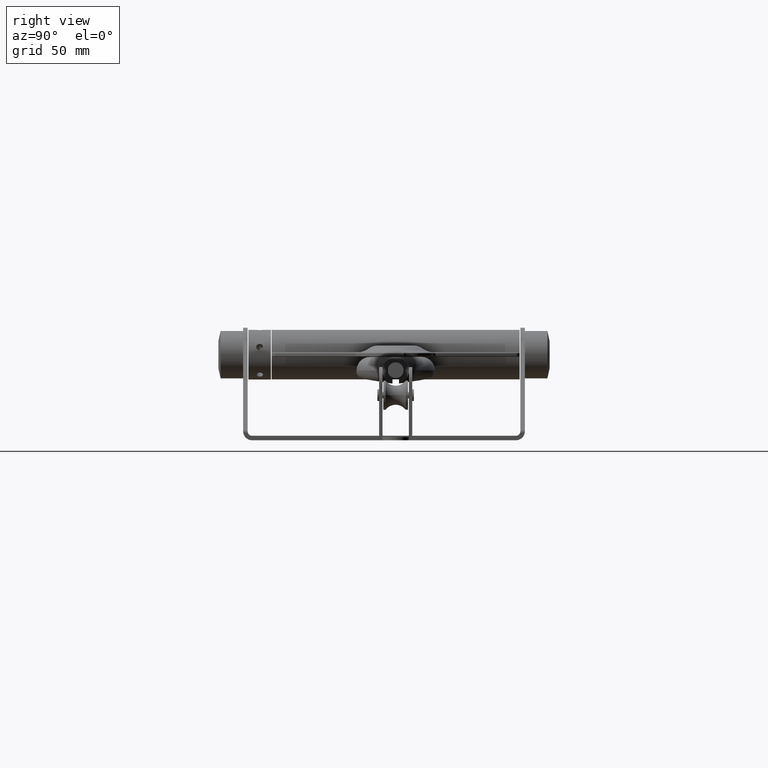
[diagram: clean part render]
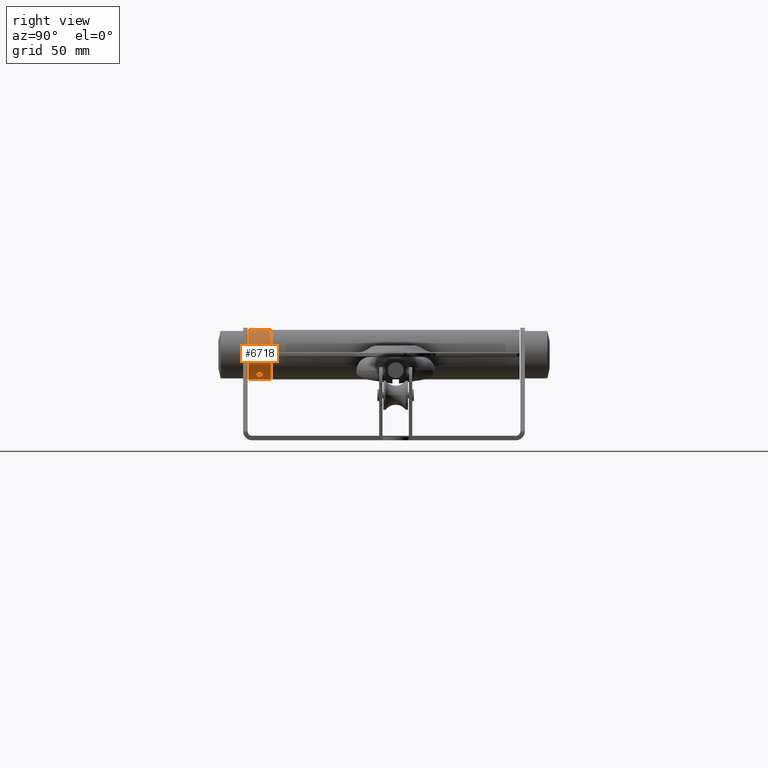
[diagram: same view with one face highlighted and labeled with its STEP entity id]
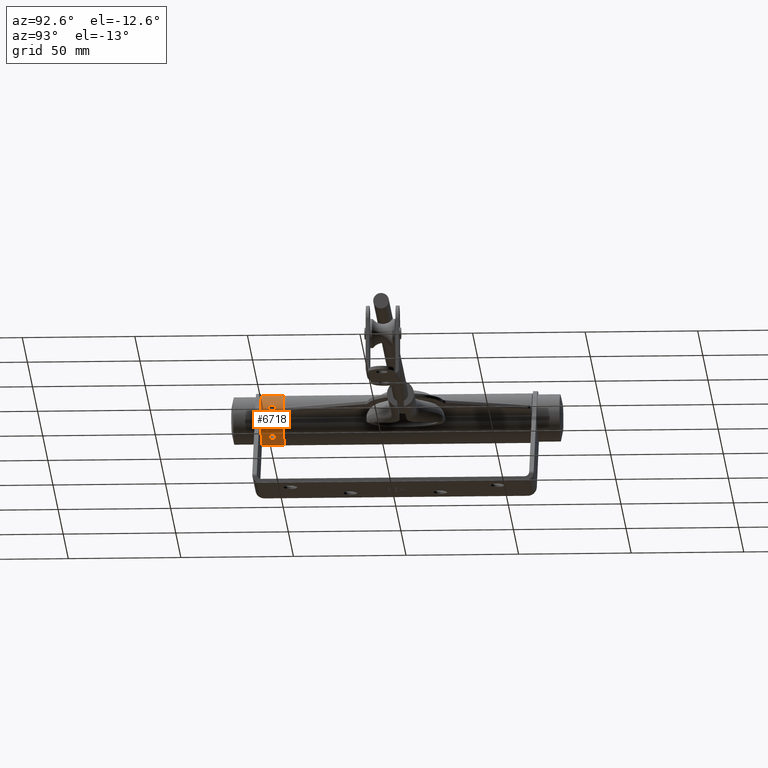
[diagram: same view with one face highlighted and labeled with its STEP entity id]
A machine part, right view. The second image highlights one B-rep face of the part: STEP entity #6718.
A second angle (auxiliary view) of the same face is appended — the face is thin or edge-on in the first view.
In plain terms, the highlighted cylindrical surface (bore or boss wall) has radius 11 mm, axis along (0, 1, 0).
Its self-contained STEP definition (entity closure, byte-faithful):
#156 = CARTESIAN_POINT ( 'NONE',  ( 5.191715796553792117, -0.09922106720705439753, -9.697736183657182707 ) ) ;
#167 = CARTESIAN_POINT ( 'NONE',  ( 10.43162004397093412, -1.500054600960704976, 3.491546571518214126 ) ) ;
#231 = CARTESIAN_POINT ( 'NONE',  ( 7.507420032056269399, -0.6654642516021292975, -8.039905768890871940 ) ) ;
#328 = CARTESIAN_POINT ( 'NONE',  ( 1.302460655520604860, -0.7504703599725630614, 10.92275567198693231 ) ) ;
#377 = CARTESIAN_POINT ( 'NONE',  ( 5.200397838848361154, -0.1967606968004345924, -9.693102352215765549 ) ) ;
#388 = CARTESIAN_POINT ( 'NONE',  ( 10.64816999410571086, 1.348456892399368057, 2.761293646733665064 ) ) ;
#511 = CARTESIAN_POINT ( 'NONE',  ( -5.234719932667456277, -0.3904336888679598161, -9.674610295123361681 ) ) ;
#861 = B_SPLINE_CURVE_WITH_KNOTS ( 'NONE', 3,
 ( #11095, #17929, #10622, #12430, #5628, #21396, #1586, #14232, #7053, #18338, #3790, #23211, #5702, #167, #12792, #14640, #20186, #2039, #3865, #16779, #18570, #13259, #22327, #15035, #15107, #13033, #5765, #16614, #7609, #11315, #14957, #7928, #7841, #14793, #9586, #6097, #22092, #2358, #12953, #9433, #5930, #388, #20576, #22248, #11384, #4273, #20332, #22169, #11240, #2203 ),
 .UNSPECIFIED., .T., .F.,
 ( 4, 2, 2, 2, 2, 2, 2, 2, 2, 2, 2, 2, 2, 2, 2, 2, 2, 2, 2, 2, 2, 2, 2, 2, 4 ),
 ( 0.000000000000000000, 0.0002934112971071087045, 0.0005868225942142170836, 0.0008802338913213254628, 0.001173645188428433734, 0.001760467782642649625, 0.002347290376856865299, 0.002640701673963972377, 0.002934112971071079455, 0.003520935565285295780, 0.003814346862392403725, 0.004107758159499512104, 0.004401169456606620484, 0.004694580753713728863, 0.005281403347927945621, 0.005868225942142162380, 0.006161637239249270759, 0.006455048536356379138, 0.007041871130570599366, 0.007335282427677707745, 0.007628693724784816124, 0.007922105021891926238, 0.008215516318999034617, 0.008802338913213251376, 0.009389161507427469869 ),
 .UNSPECIFIED. ) ;
#895 = EDGE_LOOP ( 'NONE', ( #8674 ) ) ;
#998 = EDGE_LOOP ( 'NONE', ( #19027 ) ) ;
#1009 = DIRECTION ( 'NONE',  ( -0.000000000000000000, 1.000000000000000000, -0.000000000000000000 ) ) ;
#1055 = CARTESIAN_POINT ( 'NONE',  ( -7.618766779678497691, -1.355252715606880543E-16, -7.934380426779859441 ) ) ;
#1101 = CARTESIAN_POINT ( 'NONE',  ( 1.734723475976807094E-15, 4.999999999999997335, 0.000000000000000000 ) ) ;
#1263 = CARTESIAN_POINT ( 'NONE',  ( -9.918137013876709318, 0.3955845421627410263, 4.757759455030100781 ) ) ;
#1346 = CARTESIAN_POINT ( 'NONE',  ( -10.79936843061965313, -0.6654642516021228582, 2.091669622598185896 ) ) ;
#1410 = VERTEX_POINT ( 'NONE', #10317 ) ;
#1435 = CARTESIAN_POINT ( 'NONE',  ( -10.39999180744122143, 1.490434260984158099, 3.584604037679150146 ) ) ;
#1508 = CARTESIAN_POINT ( 'NONE',  ( -10.67175748062234497, -1.310826343423887375, 2.673333922292947751 ) ) ;
#1581 = CARTESIAN_POINT ( 'NONE',  ( -10.82061332901179540, 0.3929074165688718479, 1.979898828246633880 ) ) ;
#1586 = CARTESIAN_POINT ( 'NONE',  ( 10.79050706957852412, -0.7516487550839683340, 2.137278101710006428 ) ) ;
#1674 = CARTESIAN_POINT ( 'NONE',  ( -0.9155106826520545971, 1.192215103256997422, 10.96213776218510461 ) ) ;
#1752 = CARTESIAN_POINT ( 'NONE',  ( -0.6654692299742590578, 1.347889999444485065, 10.98022825270610348 ) ) ;
#1832 = CARTESIAN_POINT ( 'NONE',  ( -0.09851459464985867776, 1.499962747906386840, 10.99999492016941005 ) ) ;
#1915 = CARTESIAN_POINT ( 'NONE',  ( 1.130516797368213533, -0.9906952745501896862, 10.94197156844076702 ) ) ;
#1954 = VERTEX_POINT ( 'NONE', #15612 ) ;
#2032 = CARTESIAN_POINT ( 'NONE',  ( 6.993379004750342354, 1.347265181280678625, -8.491226015405500149 ) ) ;
#2039 = CARTESIAN_POINT ( 'NONE',  ( 10.20497941564840261, -1.310826343423886042, 4.109929088377749729 ) ) ;
#2053 = CARTESIAN_POINT ( 'NONE',  ( 1.128859521965071444, 0.9925904746393366951, 10.94214375252337490 ) ) ;
#2138 = CARTESIAN_POINT ( 'NONE',  ( 0.1953226422279473740, 1.500074180597992912, 11.00001011553537289 ) ) ;
#2203 = CARTESIAN_POINT ( 'NONE',  ( 10.82742360187844533, -1.084202172485504434E-16, 1.940849851350075372 ) ) ;
#2233 = EDGE_LOOP ( 'NONE', ( #4261 ) ) ;
#2249 = CARTESIAN_POINT ( 'NONE',  ( -5.840246068389841838, -1.310826343423883822, -9.323338878639892968 ) ) ;
#2346 = CARTESIAN_POINT ( 'NONE',  ( 6.148529388612073987, 1.452431181521820269, -9.121666627276168171 ) ) ;
#2358 = CARTESIAN_POINT ( 'NONE',  ( 10.49187094668844367, 1.500086629875221123, 3.306127493897090819 ) ) ;
#2545 = CARTESIAN_POINT ( 'NONE',  ( -7.611676845475818354, -0.1967606968004345924, -7.941205607014395262 ) ) ;
#2678 = CARTESIAN_POINT ( 'NONE',  ( -9.921367618360731555, -0.3886218608046736467, 4.750456343781358726 ) ) ;
#2700 = CARTESIAN_POINT ( 'NONE',  ( -5.914562872713551300, 1.347265181280679514, -9.275031815228480525 ) ) ;
#3078 = CARTESIAN_POINT ( 'NONE',  ( -10.82567372722415300, -0.1980102255760644303, 1.950683338643560472 ) ) ;
#3158 = CARTESIAN_POINT ( 'NONE',  ( -10.71020245703200757, -1.200862300451582820, 2.512235011411056096 ) ) ;
#3237 = CARTESIAN_POINT ( 'NONE',  ( -9.982602904303039537, 0.7563316221577113252, 4.620969174638593024 ) ) ;
#3341 = CARTESIAN_POINT ( 'NONE',  ( -1.198964913299075841, -0.9223237274877774672, 10.93534439137421366 ) ) ;
#3391 = CARTESIAN_POINT ( 'NONE',  ( -10.20562548385357360, 1.302457116837337781, 4.105106537322852134 ) ) ;
#3488 = CARTESIAN_POINT ( 'NONE',  ( -1.460375320810246347, -0.3942881640580507274, 10.90288934863977843 ) ) ;
#3628 = CARTESIAN_POINT ( 'NONE',  ( 5.259951325779389286, -0.4839463892377863785, -9.660970630368273859 ) ) ;
#3781 = CARTESIAN_POINT ( 'NONE',  ( 5.191715796553792117, -1.219727444046192488E-16, -9.697736183657184483 ) ) ;
#3790 = CARTESIAN_POINT ( 'NONE',  ( 10.67171365346788292, -1.310680290924018720, 2.673420108965852027 ) ) ;
#3854 = CARTESIAN_POINT ( 'NONE',  ( 6.143368989296050131, -1.460375467965762342, -9.126426729119744508 ) ) ;
#3865 = CARTESIAN_POINT ( 'NONE',  ( 10.14139049093541622, -1.200862300451586373, 4.262858235214821434 ) ) ;
#3881 = CARTESIAN_POINT ( 'NONE',  ( 1.802486111757151122E-15, -1.499999999999994671, 11.00000000000000355 ) ) ;
#4060 = CARTESIAN_POINT ( 'NONE',  ( -7.473443048979287795, -0.7516487550839699994, -8.071595226244703269 ) ) ;
#4087 = CARTESIAN_POINT ( 'NONE',  ( 5.191715796553792117, -1.219727444046192488E-16, -9.697736183657184483 ) ) ;
#4151 = CARTESIAN_POINT ( 'NONE',  ( -7.345490451056918779, -0.9916825642055963064, -8.188320375931157358 ) ) ;
#4261 = ORIENTED_EDGE ( 'NONE', *, *, #22550, .T. ) ;
#4273 = CARTESIAN_POINT ( 'NONE',  ( 10.77045862837951518, 0.9234156699492931386, 2.239759008106761762 ) ) ;
#4317 = CARTESIAN_POINT ( 'NONE',  ( -7.562714722497001496, -0.4839463892377865450, -7.987915090718844091 ) ) ;
#4693 = CARTESIAN_POINT ( 'NONE',  ( -6.775220413848130008, 1.452431181521819603, -8.666348945522887703 ) ) ;
#4783 = CARTESIAN_POINT ( 'NONE',  ( -7.240986333037261247, 1.130510068122147604, -8.280878081144242842 ) ) ;
#4999 = CARTESIAN_POINT ( 'NONE',  ( -10.11317089266316671, 1.130510068122144940, 4.327655181018683628 ) ) ;
#5083 = CARTESIAN_POINT ( 'NONE',  ( -10.60104970929285884, -1.423632055747013236, 2.937009628419212426 ) ) ;
#5097 = VERTEX_POINT ( 'NONE', #13932 ) ;
#5156 = CARTESIAN_POINT ( 'NONE',  ( -10.64877988868550318, 1.347265181280680402, 2.758941106857715653 ) ) ;
#5178 = CARTESIAN_POINT ( 'NONE',  ( -0.9911400898390937408, 1.130231421369405131, 10.95548148214987272 ) ) ;
#5321 = CARTESIAN_POINT ( 'NONE',  ( -1.423632848345541824, 0.4826397892659986533, 10.90755271237982349 ) ) ;
#5483 = CARTESIAN_POINT ( 'NONE',  ( -0.4839486361568829942, -1.423185392575385899, 10.98972522702108101 ) ) ;
#5518 = FACE_OUTER_BOUND ( 'NONE', #10934, .T. ) ;
#5565 = CARTESIAN_POINT ( 'NONE',  ( 1.490434331210564567, -0.1953860087754974995, 10.89857665632106887 ) ) ;
#5628 = CARTESIAN_POINT ( 'NONE',  ( 10.81354342099870891, -0.4839463892377851018, 2.017106876836803675 ) ) ;
#5689 = CARTESIAN_POINT ( 'NONE',  ( 6.623921259609097945, -1.490291314580465931, -8.782535756916491465 ) ) ;
#5702 = CARTESIAN_POINT ( 'NONE',  ( 10.52240335422114725, -1.499890092889741400, 3.212071677671953118 ) ) ;
#5765 = CARTESIAN_POINT ( 'NONE',  ( 9.900389022253918370, -0.09851510423734066713, 4.793985524534121190 ) ) ;
#5779 = CARTESIAN_POINT ( 'NONE',  ( 1.460549597430521596, 0.3943136771651463146, 10.90287073325300327 ) ) ;
#5930 = CARTESIAN_POINT ( 'NONE',  ( 10.60107048254503326, 1.423599352457328049, 2.936932319781555556 ) ) ;
#5980 = CARTESIAN_POINT ( 'NONE',  ( -5.517167974941250996, -0.9911323540295565726, -9.516606427297297444 ) ) ;
#6065 = CARTESIAN_POINT ( 'NONE',  ( -7.583823662643655261, -0.3886218608046749234, -7.967809582737003460 ) ) ;
#6090 = CYLINDRICAL_SURFACE ( 'NONE', #16833, 11.00000000000000000 ) ;
#6097 = CARTESIAN_POINT ( 'NONE',  ( 10.33447876204744098, 1.460549766408085981, 3.772482645674902990 ) ) ;
#6297 = CARTESIAN_POINT ( 'NONE',  ( -5.226749090433791878, 0.3929074165688670184, -9.679192431795620166 ) ) ;
#6379 = EDGE_LOOP ( 'NONE', ( #10032 ) ) ;
#6428 = CARTESIAN_POINT ( 'NONE',  ( -10.14060134787140299, -1.198958018750907017, 4.264678942825545604 ) ) ;
#6540 = CARTESIAN_POINT ( 'NONE',  ( -7.396986753916988455, 0.9234156699492940268, -8.142719843050402417 ) ) ;
#6664 = CARTESIAN_POINT ( 'NONE',  ( -10.14344625212994444, 1.193704798455211602, 4.256429175917683772 ) ) ;
#6718 = ADVANCED_FACE ( 'NONE', ( #17231, #9564, #11238, #22866, #13134, #5518, #17446 ), #6090, .T. ) ;
#6830 = CARTESIAN_POINT ( 'NONE',  ( -9.900372618753632281, 1.897353801849632760E-16, 4.794019400235381312 ) ) ;
#6971 = CARTESIAN_POINT ( 'NONE',  ( -10.76854019030190024, -0.9155028073419344548, 2.245335404296280313 ) ) ;
#6998 = CARTESIAN_POINT ( 'NONE',  ( -0.9916901964606196218, -1.129645977572705906, 10.95542646406630993 ) ) ;
#7053 = CARTESIAN_POINT ( 'NONE',  ( 10.75560056494222927, -0.9916825642055926426, 2.306919381528580448 ) ) ;
#7281 = CARTESIAN_POINT ( 'NONE',  ( 7.188081110935033990, -1.200862300451581932, -8.327739871405276162 ) ) ;
#7309 = CARTESIAN_POINT ( 'NONE',  ( 0.3929095347849420050, 1.460757429368037430, 10.99446764604949323 ) ) ;
#7364 = CARTESIAN_POINT ( 'NONE',  ( 5.840314493451181477, -1.310680290924018276, -9.323270563392430432 ) ) ;
#7439 = CARTESIAN_POINT ( 'NONE',  ( 7.480571517709965867, 0.7540569334361714171, -8.065154800405652580 ) ) ;
#7609 = CARTESIAN_POINT ( 'NONE',  ( 9.917815405005093510, 0.3929074165688645204, 4.758425136358007457 ) ) ;
#7841 = CARTESIAN_POINT ( 'NONE',  ( 10.14269542414140801, 1.192215286157108700, 4.258214301208017361 ) ) ;
#7918 = CARTESIAN_POINT ( 'NONE',  ( 6.069099558319106080, 1.423599352457329159, -9.174655163987134543 ) ) ;
#7928 = CARTESIAN_POINT ( 'NONE',  ( 10.11242164522266229, 1.128852651718869948, 4.329404587279015004 ) ) ;
#7971 = CARTESIAN_POINT ( 'NONE',  ( -5.463102790937089281, -0.9155028073419336776, -9.547643520973597475 ) ) ;
#8012 = DIRECTION ( 'NONE',  ( 0.000000000000000000, 0.000000000000000000, 1.000000000000000000 ) ) ;
#8190 = CARTESIAN_POINT ( 'NONE',  ( -9.900372618753632281, 1.897353801849632760E-16, 4.794019400235381312 ) ) ;
#8290 = CARTESIAN_POINT ( 'NONE',  ( 1.734723475976807094E-15, -4.999999999999997335, 11.00000000000000000 ) ) ;
#8309 = CARTESIAN_POINT ( 'NONE',  ( -5.456912513162738065, 0.9212460349021189820, -9.552034771092985821 ) ) ;
#8536 = CARTESIAN_POINT ( 'NONE',  ( 1.734723475976807094E-15, -1.499999999999994449, 11.00000000000000355 ) ) ;
#8674 = ORIENTED_EDGE ( 'NONE', *, *, #19964, .T. ) ;
#8719 = AXIS2_PLACEMENT_3D ( 'NONE', #1101, #1009, #8012 ) ;
#8757 = CARTESIAN_POINT ( 'NONE',  ( -10.72588113288015776, 1.128852651718871281, 2.441370421391579004 ) ) ;
#8992 = CARTESIAN_POINT ( 'NONE',  ( -1.310829227117657148, 0.7552571413888262697, 10.92188048727257943 ) ) ;
#9130 = CARTESIAN_POINT ( 'NONE',  ( 7.392156981468405164, -0.9155028073419364532, -8.146103612725637433 ) ) ;
#9207 = CARTESIAN_POINT ( 'NONE',  ( 7.472763403791653936, -0.7531955497149609435, -8.072223734441827503 ) ) ;
#9233 = CARTESIAN_POINT ( 'NONE',  ( 1.301112446651470966, 0.7527893807653758262, 10.92291670360245348 ) ) ;
#9356 = CARTESIAN_POINT ( 'NONE',  ( 6.850098427605757934, -1.423632055747011904, -8.607231379975704755 ) ) ;
#9433 = CARTESIAN_POINT ( 'NONE',  ( 10.57522055683797291, 1.452431181521819381, 3.028848935820647625 ) ) ;
#9480 = ORIENTED_EDGE ( 'NONE', *, *, #22819, .T. ) ;
#9496 = CARTESIAN_POINT ( 'NONE',  ( 5.843603372935849194, 1.302457116837340445, -9.319817102243215245 ) ) ;
#9564 = FACE_BOUND ( 'NONE', #998, .T. ) ;
#9586 = CARTESIAN_POINT ( 'NONE',  ( 10.23670879385913324, 1.347265181280678403, 4.027165531550585875 ) ) ;
#9648 = CARTESIAN_POINT ( 'NONE',  ( 5.359957865527233523, 0.7563316221577118803, -9.606069359406705033 ) ) ;
#9698 = CARTESIAN_POINT ( 'NONE',  ( -5.191649720360737241, 0.1953220818559212313, -9.697771557770991535 ) ) ;
#9779 = CARTESIAN_POINT ( 'NONE',  ( -6.781342190811100679, -1.460375467965763230, -8.662912066491324836 ) ) ;
#9865 = CARTESIAN_POINT ( 'NONE',  ( -7.589771022498330133, 0.3955845421627401937, -7.962480309803227740 ) ) ;
#9921 = CARTESIAN_POINT ( 'NONE',  ( -9.985964145444786055, -0.7516487550839664467, 4.613406614267189454 ) ) ;
#10032 = ORIENTED_EDGE ( 'NONE', *, *, #10906, .T. ) ;
#10034 = AXIS2_PLACEMENT_3D ( 'NONE', #17914, #19939, #14297 ) ;
#10105 = CARTESIAN_POINT ( 'NONE',  ( -6.304093887365737281, 1.499825000284431775, -9.016525945770228034 ) ) ;
#10155 = CARTESIAN_POINT ( 'NONE',  ( -9.900372618753634057, -0.09922106720705460570, 4.794019400235382200 ) ) ;
#10300 = CARTESIAN_POINT ( 'NONE',  ( -10.81871858378077356, -0.3904336888679587614, 1.988895507795592099 ) ) ;
#10317 = CARTESIAN_POINT ( 'NONE',  ( 1.734723475976807094E-15, 4.999999999999997335, 11.00000000000000000 ) ) ;
#10384 = CARTESIAN_POINT ( 'NONE',  ( -10.57817861016031635, 1.460549766408085759, 3.022451635125785074 ) ) ;
#10622 = CARTESIAN_POINT ( 'NONE',  ( 10.82569946490557733, -0.1967606968004337875, 1.950538896913549536 ) ) ;
#10733 = CARTESIAN_POINT ( 'NONE',  ( -0.9146204051370453447, -1.192925387821238026, 10.96221452372085459 ) ) ;
#10806 = CARTESIAN_POINT ( 'NONE',  ( -0.7532021306663971849, 1.300854800830486324, 10.97448452901247862 ) ) ;
#10876 = CARTESIAN_POINT ( 'NONE',  ( -0.3904348020054948520, 1.451615636338489113, 10.99349008195833832 ) ) ;
#10906 = EDGE_CURVE ( 'NONE', #1954, #1954, #15396, .T. ) ;
#10919 = B_SPLINE_CURVE_WITH_KNOTS ( 'NONE', 3,
 ( #3781, #156, #377, #18172, #3628, #20321, #22162, #14475, #21997, #20027, #7364, #3854, #12942, #10928, #5689, #12718, #9356, #16302, #7281, #20101, #9130, #9207, #231, #21932, #14785, #14631, #16454, #18327, #22082, #7439, #11155, #11085, #12866, #20182, #2032, #14704, #16521, #18412, #20246, #2346, #7918, #17011, #9496, #20643, #20409, #22531, #9648, #16691, #14858, #4087 ),
 .UNSPECIFIED., .T., .F.,
 ( 4, 2, 2, 2, 2, 2, 2, 2, 2, 2, 2, 2, 2, 2, 2, 2, 2, 2, 2, 2, 2, 2, 2, 2, 4 ),
 ( 0.000000000000000000, 0.0002934112971071089213, 0.0005868225942142178426, 0.0008802338913213267639, 0.001173645188428435685, 0.001760467782642654395, 0.002347290376856872671, 0.002640701673963980617, 0.002934112971071088562, 0.003520935565285307923, 0.003814346862392416736, 0.004107758159499525982, 0.004401169456606635229, 0.004694580753713744475, 0.005281403347927962968, 0.005868225942142182329, 0.006161637239249289841, 0.006455048536356398220, 0.007041871130570617580, 0.007335282427677723358, 0.007628693724784830002, 0.007922105021891936646, 0.008215516318999043291, 0.008802338913213258315, 0.009389161507427471604 ),
 .UNSPECIFIED. ) ;
#10928 = CARTESIAN_POINT ( 'NONE',  ( 6.544205991239731901, -1.500054600960704088, -8.842112991082993645 ) ) ;
#10934 = EDGE_LOOP ( 'NONE', ( #15728 ) ) ;
#10954 = CARTESIAN_POINT ( 'NONE',  ( 0.7563379066569094755, -1.310005723733510985, 10.97545342880767016 ) ) ;
#11085 = CARTESIAN_POINT ( 'NONE',  ( 7.242418587068684133, 1.128852651718869282, -8.279624908219117785 ) ) ;
#11095 = CARTESIAN_POINT ( 'NONE',  ( 10.82742360187844533, -1.084202172485504434E-16, 1.940849851350075372 ) ) ;
#11155 = CARTESIAN_POINT ( 'NONE',  ( 7.398246209541301077, 0.9212460349021196482, -8.141573279624104487 ) ) ;
#11238 = FACE_BOUND ( 'NONE', #6379, .T. ) ;
#11240 = CARTESIAN_POINT ( 'NONE',  ( 10.82742360187845243, 0.1984421344141092114, 1.940849851350075594 ) ) ;
#11256 = CARTESIAN_POINT ( 'NONE',  ( 1.423600298622414773, -0.4827192565959946280, 10.90755685295867039 ) ) ;
#11288 = CARTESIAN_POINT ( 'NONE',  ( -7.507394322397938247, -0.6655396847754703193, -8.039929847855258771 ) ) ;
#11315 = CARTESIAN_POINT ( 'NONE',  ( 9.982041754464503924, 0.7540569334361674203, 4.622176391939986750 ) ) ;
#11384 = CARTESIAN_POINT ( 'NONE',  ( 10.72545901159244153, 1.130510068122144496, 2.443226117382102824 ) ) ;
#11425 = CARTESIAN_POINT ( 'NONE',  ( -5.191748978901890688, -0.09851510423733833566, -9.697718419374716348 ) ) ;
#11583 = CARTESIAN_POINT ( 'NONE',  ( -6.069166663914760562, -1.423632055747012126, -9.174611517767445434 ) ) ;
#11813 = CARTESIAN_POINT ( 'NONE',  ( -7.479596790665397954, 0.7563316221577112142, -8.066061536278244404 ) ) ;
#11887 = CARTESIAN_POINT ( 'NONE',  ( -6.850160674396876814, 1.423599352457328493, -8.607181046185294448 ) ) ;
#11966 = CARTESIAN_POINT ( 'NONE',  ( -5.702697399548497970, 1.192215286157109588, -9.406694524172358740 ) ) ;
#12014 = CARTESIAN_POINT ( 'NONE',  ( -9.966340101453594613, -0.6655396847754667666, 4.655481334144163874 ) ) ;
#12098 = CARTESIAN_POINT ( 'NONE',  ( -10.02998138122564953, 0.9234156699492941378, 4.518713641325036612 ) ) ;
#12176 = CARTESIAN_POINT ( 'NONE',  ( -10.33446895256094500, -1.460375467965762120, 3.772452630476565982 ) ) ;
#12427 = CARTESIAN_POINT ( 'NONE',  ( -10.75572922077548377, -0.9911323540295576828, 2.306345439250122809 ) ) ;
#12430 = CARTESIAN_POINT ( 'NONE',  ( 10.81880319122902279, -0.3886218608046739798, 1.988433655489234786 ) ) ;
#12512 = CARTESIAN_POINT ( 'NONE',  ( -1.490291506661348908, 0.1966183384481407503, 10.89859646344575239 ) ) ;
#12537 = CIRCLE ( 'NONE', #8719, 11.00000000000000000 ) ;
#12656 = CARTESIAN_POINT ( 'NONE',  ( -0.1980093425005734764, 1.490107241295724805, 10.99863881655433850 ) ) ;
#12718 = CARTESIAN_POINT ( 'NONE',  ( 6.776615128851768866, -1.451978390107856676, -8.665261367693149808 ) ) ;
#12738 = CARTESIAN_POINT ( 'NONE',  ( 1.192220905689032051, 0.9155297715872047215, 10.93533777369070847 ) ) ;
#12792 = CARTESIAN_POINT ( 'NONE',  ( 10.39959209983132915, -1.490291314580466597, 3.585770674784422241 ) ) ;
#12817 = DIRECTION ( 'NONE',  ( 0.000000000000000000, 0.000000000000000000, 1.000000000000000000 ) ) ;
#12866 = CARTESIAN_POINT ( 'NONE',  ( 7.184067713773785613, 1.192215286157107590, -8.330415991163020450 ) ) ;
#12942 = CARTESIAN_POINT ( 'NONE',  ( 6.306463157979280254, -1.499890092889740734, -9.014815541566941093 ) ) ;
#12953 = CARTESIAN_POINT ( 'NONE',  ( 10.52074750223600219, 1.490434260984158987, 3.212956223789097621 ) ) ;
#13033 = CARTESIAN_POINT ( 'NONE',  ( 9.904736919230009207, -0.1980102255760679275, 4.785035391385826564 ) ) ;
#13134 = FACE_BOUND ( 'NONE', #2233, .T. ) ;
#13146 = CARTESIAN_POINT ( 'NONE',  ( -5.200527257715965135, -0.1980102255760640972, -9.693033239276866553 ) ) ;
#13259 = CARTESIAN_POINT ( 'NONE',  ( 9.986351870348084248, -0.7531955497149624978, 4.612566013568705436 ) ) ;
#13454 = CARTESIAN_POINT ( 'NONE',  ( -5.358794301245392688, 0.7540569334361679754, -9.606716183120008523 ) ) ;
#13590 = CARTESIAN_POINT ( 'NONE',  ( -9.933966071501725281, -0.4839463892377839915, 4.724167605055870744 ) ) ;
#13694 = CARTESIAN_POINT ( 'NONE',  ( -7.057900035143512163, 1.302457116837339335, -8.437578935534386204 ) ) ;
#13783 = CARTESIAN_POINT ( 'NONE',  ( -6.622935238232209976, 1.490434260984158543, -8.783276412135295530 ) ) ;
#13932 = CARTESIAN_POINT ( 'NONE',  ( 10.82742360187844355, 0.000000000000000000, 1.940849851350075150 ) ) ;
#13999 = CARTESIAN_POINT ( 'NONE',  ( -10.20499461799090035, -1.310680290924016500, 4.109833600939638565 ) ) ;
#14160 = CARTESIAN_POINT ( 'NONE',  ( -10.82743682599330626, 0.1953220818559250893, 1.940776077953774159 ) ) ;
#14185 = CARTESIAN_POINT ( 'NONE',  ( -0.6655446615906072116, -1.347855054338672254, 10.98022391171008216 ) ) ;
#14229 = CARTESIAN_POINT ( 'NONE',  ( -10.33584588564230700, 1.452431181521818493, 3.765568420576262731 ) ) ;
#14232 = CARTESIAN_POINT ( 'NONE',  ( 10.76868639095038560, -0.9146133221466113961, 2.244636700233039850 ) ) ;
#14297 = DIRECTION ( 'NONE',  ( 0.000000000000000000, 0.000000000000000000, 1.000000000000000000 ) ) ;
#14475 = CARTESIAN_POINT ( 'NONE',  ( 5.462483462369747578, -0.9146133221466128393, -9.547998477482607882 ) ) ;
#14564 = EDGE_CURVE ( 'NONE', #19618, #19618, #18060, .T. ) ;
#14579 = CARTESIAN_POINT ( 'NONE',  ( 1.499824784090836083, 0.1996650407121646209, 10.89727147721399803 ) ) ;
#14631 = CARTESIAN_POINT ( 'NONE',  ( 7.611571122535434775, -0.1980102255760667063, -7.941307334599110312 ) ) ;
#14640 = CARTESIAN_POINT ( 'NONE',  ( 10.33524252829879053, -1.451978390107857786, 3.767230953400937832 ) ) ;
#14704 = CARTESIAN_POINT ( 'NONE',  ( 6.781373768259104651, 1.460549766408084427, -8.662912120660998028 ) ) ;
#14730 = CARTESIAN_POINT ( 'NONE',  ( 1.348459399905603595, -0.6643138849464458318, 10.91710087695308040 ) ) ;
#14771 = EDGE_LOOP ( 'NONE', ( #9480 ) ) ;
#14785 = CARTESIAN_POINT ( 'NONE',  ( 7.583483743805753186, -0.3904336888679620921, -7.968133498091432898 ) ) ;
#14793 = CARTESIAN_POINT ( 'NONE',  ( 10.20475644132816129, 1.301108913038394821, 4.107262528142425317 ) ) ;
#14809 = CARTESIAN_POINT ( 'NONE',  ( 1.452431637780416063, -0.3873145048288275105, 10.90370624911236597 ) ) ;
#14817 = CARTESIAN_POINT ( 'NONE',  ( 1.734723475976807094E-15, 4.999999999999997335, 0.000000000000000000 ) ) ;
#14858 = CARTESIAN_POINT ( 'NONE',  ( 5.191715796553791229, 0.1984421344141073795, -9.697736183657189812 ) ) ;
#14891 = CARTESIAN_POINT ( 'NONE',  ( 0.7540624146361503133, 1.311327588671851840, 10.97561326748474109 ) ) ;
#14920 = CARTESIAN_POINT ( 'NONE',  ( -6.305783622589920867, -1.490291314580465709, -9.013676279970050942 ) ) ;
#14957 = CARTESIAN_POINT ( 'NONE',  ( 10.02928012779930000, 0.9212460349021179828, 4.520265762387386310 ) ) ;
#15005 = CARTESIAN_POINT ( 'NONE',  ( -7.062200791526457522, -1.310680290924018943, -8.435518203453703734 ) ) ;
#15035 = CARTESIAN_POINT ( 'NONE',  ( 9.933964020614926227, -0.4839264239596263173, 4.724171794875021924 ) ) ;
#15107 = CARTESIAN_POINT ( 'NONE',  ( 9.921570639471669395, -0.3904336888679624251, 4.750032966406307899 ) ) ;
#15234 = CARTESIAN_POINT ( 'NONE',  ( -5.698912050486497627, -1.200862300451579268, -9.409684525210915140 ) ) ;
#15274 = VERTEX_POINT ( 'NONE', #8536 ) ;
#15382 = CARTESIAN_POINT ( 'NONE',  ( -6.143359282846398095, 1.460549766408085537, -9.126456777796777331 ) ) ;
#15396 = B_SPLINE_CURVE_WITH_KNOTS ( 'NONE', 3,
 ( #22368, #22293, #2545, #6065, #4317, #11288, #4060, #18623, #4151, #16828, #15005, #9779, #20616, #16988, #14920, #18707, #11583, #2249, #15234, #5980, #7971, #22508, #16745, #20468, #511, #13146, #11425, #9698, #6297, #13454, #8309, #22897, #11966, #18943, #2700, #15382, #10105, #15553, #13783, #4693, #11887, #17311, #13694, #19029, #4783, #6540, #11813, #9865, #19111, #1055 ),
 .UNSPECIFIED., .T., .F.,
 ( 4, 2, 2, 2, 2, 2, 2, 2, 2, 2, 2, 2, 2, 2, 2, 2, 2, 2, 2, 2, 2, 2, 2, 2, 4 ),
 ( 0.000000000000000000, 0.0002934112971071071324, 0.0005868225942142143731, 0.0008802338913213215597, 0.001173645188428428529, 0.001760467782642646589, 0.002347290376856864431, 0.002640701673963974545, 0.002934112971071085093, 0.003520935565285300117, 0.003814346862392408062, 0.004107758159499515574, 0.004401169456606623086, 0.004694580753713730598, 0.005281403347927946489, 0.005868225942142161512, 0.006161637239249269024, 0.006455048536356378271, 0.007041871130570596764, 0.007335282427677706010, 0.007628693724784816992, 0.007922105021891926238, 0.008215516318999038087, 0.008802338913213258315, 0.009389161507427478542 ),
 .UNSPECIFIED. ) ;
#15444 = CARTESIAN_POINT ( 'NONE',  ( 5.191715796553791229, 0.000000000000000000, -9.697736183657184483 ) ) ;
#15553 = CARTESIAN_POINT ( 'NONE',  ( -6.544808915548391504, 1.500086629875221123, -8.841680339552299372 ) ) ;
#15612 = CARTESIAN_POINT ( 'NONE',  ( -7.618766779678497691, 0.000000000000000000, -7.934380426779859441 ) ) ;
#15728 = ORIENTED_EDGE ( 'NONE', *, *, #17815, .F. ) ;
#15763 = CARTESIAN_POINT ( 'NONE',  ( -10.79248853459883506, 0.7540569334361730824, 2.127877678963881802 ) ) ;
#15851 = CARTESIAN_POINT ( 'NONE',  ( -10.77080361631044347, 0.9212460349021233119, 2.238091129367870469 ) ) ;
#15887 = VERTEX_POINT ( 'NONE', #15444 ) ;
#16008 = CARTESIAN_POINT ( 'NONE',  ( -10.52110986407207172, -1.490291314580465709, 3.211777452306329828 ) ) ;
#16039 = CARTESIAN_POINT ( 'NONE',  ( -1.500054661872485262, 0.09710879590426363395, 10.89723983467673385 ) ) ;
#16181 = CARTESIAN_POINT ( 'NONE',  ( -1.451978861620272676, 0.3890821651643225909, 10.90376682771908534 ) ) ;
#16302 = CARTESIAN_POINT ( 'NONE',  ( 7.062286907694512728, -1.310826343423885820, -8.435474237925685514 ) ) ;
#16454 = CARTESIAN_POINT ( 'NONE',  ( 7.618739630932421569, -0.09851510423734213817, -7.934406495603068876 ) ) ;
#16521 = CARTESIAN_POINT ( 'NONE',  ( 6.627153609737886697, 1.499825000284431775, -8.781809318381252893 ) ) ;
#16551 = CARTESIAN_POINT ( 'NONE',  ( 0.9234245866482349019, -1.198110369442060508, 10.96204940545172413 ) ) ;
#16614 = CARTESIAN_POINT ( 'NONE',  ( 9.900339954372945783, 0.1953220818559188998, 4.794086857106414357 ) ) ;
#16643 = DIRECTION ( 'NONE',  ( -0.000000000000000000, 1.000000000000000000, -0.000000000000000000 ) ) ;
#16691 = CARTESIAN_POINT ( 'NONE',  ( 5.227400555143736582, 0.3955845421627425806, -9.678842921240249808 ) ) ;
#16745 = CARTESIAN_POINT ( 'NONE',  ( -5.326484398086387628, -0.6654642516021278542, -9.624448257812325380 ) ) ;
#16779 = CARTESIAN_POINT ( 'NONE',  ( 10.05720356238577473, -0.9911323540295613466, 4.456186358370620937 ) ) ;
#16785 = B_SPLINE_CURVE_WITH_KNOTS ( 'NONE', 3,
 ( #8190, #10155, #22949, #2678, #13590, #12014, #9921, #17282, #20909, #6428, #13999, #12176, #21313, #19482, #16008, #17692, #5083, #1508, #3158, #12427, #6971, #19643, #1346, #23036, #10300, #3078, #17770, #14160, #1581, #15763, #15851, #8757, #17530, #23355, #5156, #10384, #21468, #17612, #1435, #14229, #19717, #21231, #3391, #6664, #4999, #12098, #3237, #1263, #17857, #6830 ),
 .UNSPECIFIED., .T., .F.,
 ( 4, 2, 2, 2, 2, 2, 2, 2, 2, 2, 2, 2, 2, 2, 2, 2, 2, 2, 2, 2, 2, 2, 2, 2, 4 ),
 ( 0.000000000000000000, 0.0002934112971071097887, 0.0005868225942142195773, 0.0008802338913213292575, 0.001173645188428439155, 0.001760467782642656780, 0.002347290376856873539, 0.002640701673963983219, 0.002934112971071092899, 0.003520935565285312693, 0.003814346862392421506, 0.004107758159499531186, 0.004401169456606640433, 0.004694580753713748812, 0.005281403347927968173, 0.005868225942142186666, 0.006161637239249295912, 0.006455048536356405159, 0.007041871130570621917, 0.007335282427677730296, 0.007628693724784839543, 0.007922105021891945320, 0.008215516318999050230, 0.008802338913213263519, 0.009389161507427475073 ),
 .UNSPECIFIED. ) ;
#16828 = CARTESIAN_POINT ( 'NONE',  ( -7.189568848154702430, -1.198958018750910570, -8.326426722158457139 ) ) ;
#16833 = AXIS2_PLACEMENT_3D ( 'NONE', #14817, #16643, #12817 ) ;
#16959 = ORIENTED_EDGE ( 'NONE', *, *, #14564, .T. ) ;
#16988 = CARTESIAN_POINT ( 'NONE',  ( -6.387078312004116576, -1.500054600960704310, -8.956272932374458762 ) ) ;
#17011 = CARTESIAN_POINT ( 'NONE',  ( 5.916611803302485484, 1.348456892399370499, -9.273724796212500010 ) ) ;
#17231 = FACE_BOUND ( 'NONE', #895, .T. ) ;
#17282 = CARTESIAN_POINT ( 'NONE',  ( -10.03141464652446579, -0.9146133221466093977, 4.513725810477147604 ) ) ;
#17311 = CARTESIAN_POINT ( 'NONE',  ( -6.991502801425998115, 1.348456892399369389, -8.492770773105631221 ) ) ;
#17446 = FACE_OUTER_BOUND ( 'NONE', #21670, .T. ) ;
#17530 = CARTESIAN_POINT ( 'NONE',  ( -10.70852853425036244, 1.192215286157108256, 2.516759053437029436 ) ) ;
#17612 = CARTESIAN_POINT ( 'NONE',  ( -10.43139488177107488, 1.500086629875221123, 3.492253683286428156 ) ) ;
#17625 = CARTESIAN_POINT ( 'NONE',  ( -9.900372618753635834, 0.000000000000000000, 4.794019400235383088 ) ) ;
#17692 = CARTESIAN_POINT ( 'NONE',  ( -10.57570964276917458, -1.451978390107856676, 3.027149273963390286 ) ) ;
#17770 = CARTESIAN_POINT ( 'NONE',  ( -10.82741696095131090, -0.09851510423733866872, 1.940886899103634766 ) ) ;
#17815 = EDGE_CURVE ( 'NONE', #1410, #1410, #12537, .T. ) ;
#17857 = CARTESIAN_POINT ( 'NONE',  ( -9.900372618753630505, 0.1984421344141065746, 4.794019400235380424 ) ) ;
#17914 = CARTESIAN_POINT ( 'NONE',  ( 1.734723475976807094E-15, -4.999999999999997335, 0.000000000000000000 ) ) ;
#17929 = CARTESIAN_POINT ( 'NONE',  ( 10.82742360187844355, -0.09922106720705457794, 1.940849851350075150 ) ) ;
#18029 = CARTESIAN_POINT ( 'NONE',  ( -1.200867413996704824, 0.9203501660502425574, 10.93515661468372713 ) ) ;
#18060 = CIRCLE ( 'NONE', #10034, 11.00000000000000000 ) ;
#18110 = CARTESIAN_POINT ( 'NONE',  ( -1.499889969477739671, -0.1967396931214120681, 10.89726250448907408 ) ) ;
#18123 = EDGE_CURVE ( 'NONE', #15887, #15887, #10919, .T. ) ;
#18172 = CARTESIAN_POINT ( 'NONE',  ( 5.234306830161281177, -0.3886218608046746459, -9.674833481799902657 ) ) ;
#18195 = CARTESIAN_POINT ( 'NONE',  ( 1.193710125689403156, -0.9136003810217575571, 10.93517495813068052 ) ) ;
#18327 = CARTESIAN_POINT ( 'NONE',  ( 7.618820841126519028, 0.1953220818559180394, -7.934328515788210190 ) ) ;
#18338 = CARTESIAN_POINT ( 'NONE',  ( 10.71063421196455501, -1.198958018750909238, 2.510298181357225822 ) ) ;
#18355 = CARTESIAN_POINT ( 'NONE',  ( 0.1984417800615779215, -1.499999999999995337, 11.00000000000000711 ) ) ;
#18412 = CARTESIAN_POINT ( 'NONE',  ( 6.386480522088868739, 1.500086629875221345, -8.956712650791409658 ) ) ;
#18512 = CARTESIAN_POINT ( 'NONE',  ( 0.3955856219829526621, -1.460025356266485108, 10.99436842263586378 ) ) ;
#18570 = CARTESIAN_POINT ( 'NONE',  ( 10.03170705565934639, -0.9155028073419386736, 4.513074612430886035 ) ) ;
#18623 = CARTESIAN_POINT ( 'NONE',  ( -7.392685948221706660, -0.9146133221466138385, -8.145624283849484115 ) ) ;
#18707 = CARTESIAN_POINT ( 'NONE',  ( -6.147064049991682211, -1.451978390107856454, -9.122657000036660691 ) ) ;
#18943 = CARTESIAN_POINT ( 'NONE',  ( -5.841633043156134519, 1.301108913038395043, -9.321050525075911253 ) ) ;
#19027 = ORIENTED_EDGE ( 'NONE', *, *, #18123, .T. ) ;
#19029 = CARTESIAN_POINT ( 'NONE',  ( -7.182601977342327082, 1.193704798455212046, -8.331681705065935972 ) ) ;
#19111 = CARTESIAN_POINT ( 'NONE',  ( -7.618766779678499468, 0.1984421344141110710, -7.934380426779861217 ) ) ;
#19482 = CARTESIAN_POINT ( 'NONE',  ( -10.49163747686554693, -1.500054600960703866, 3.306831906354939843 ) ) ;
#19618 = VERTEX_POINT ( 'NONE', #8290 ) ;
#19643 = CARTESIAN_POINT ( 'NONE',  ( -10.79032665292079152, -0.7531955497149581680, 2.138186060940658884 ) ) ;
#19717 = CARTESIAN_POINT ( 'NONE',  ( -10.30273168349423685, 1.423599352457327383, 3.855124730120790488 ) ) ;
#19819 = CARTESIAN_POINT ( 'NONE',  ( -0.1967608052062565505, -1.490252408965832442, 10.99865875903122081 ) ) ;
#19893 = CARTESIAN_POINT ( 'NONE',  ( -0.09922089003078606029, -1.499999999999994449, 11.00000000000000178 ) ) ;
#19939 = DIRECTION ( 'NONE',  ( -0.000000000000000000, 1.000000000000000000, -0.000000000000000000 ) ) ;
#19964 = EDGE_CURVE ( 'NONE', #5097, #5097, #861, .T. ) ;
#19974 = CARTESIAN_POINT ( 'NONE',  ( -0.4839288609336612201, 1.423189939607653054, 10.98972586715079025 ) ) ;
#20027 = CARTESIAN_POINT ( 'NONE',  ( 5.697203435254410309, -1.198958018750909904, -9.410693661954809386 ) ) ;
#20047 = CARTESIAN_POINT ( 'NONE',  ( 0.9212546559148031555, 1.199803542943235435, 10.96223630213403943 ) ) ;
#20101 = CARTESIAN_POINT ( 'NONE',  ( 7.345931890619395332, -0.9911323540295587931, -8.187931668875508606 ) ) ;
#20182 = CARTESIAN_POINT ( 'NONE',  ( 7.059681955352350435, 1.301108913038392600, -8.436086189174687888 ) ) ;
#20186 = CARTESIAN_POINT ( 'NONE',  ( 10.30276031845729356, -1.423632055747013014, 3.855049975907846260 ) ) ;
#20246 = CARTESIAN_POINT ( 'NONE',  ( 6.306792724924372706, 1.490434260984158987, -9.012967392963938451 ) ) ;
#20271 = CARTESIAN_POINT ( 'NONE',  ( 1.347267570177371754, 0.6667399755428405905, 10.91724868877197352 ) ) ;
#20321 = CARTESIAN_POINT ( 'NONE',  ( 5.326515243263723498, -0.6655396847754695422, -9.624431247283443014 ) ) ;
#20332 = CARTESIAN_POINT ( 'NONE',  ( 10.79223292982853089, 0.7563316221577115472, 2.129184173876029984 ) ) ;
#20409 = CARTESIAN_POINT ( 'NONE',  ( 5.637995226772725132, 1.130510068122149159, -9.445519291859794109 ) ) ;
#20468 = CARTESIAN_POINT ( 'NONE',  ( -5.259947203863208465, -0.4839264239596243744, -9.660972814522155616 ) ) ;
#20576 = CARTESIAN_POINT ( 'NONE',  ( 10.66944553639135940, 1.302457116837337114, 2.677615197415572190 ) ) ;
#20616 = CARTESIAN_POINT ( 'NONE',  ( -6.624794773790991798, -1.499890092889740734, -8.783534084671064335 ) ) ;
#20643 = CARTESIAN_POINT ( 'NONE',  ( 5.704354102470228227, 1.193704798455214711, -9.405691653094068627 ) ) ;
#20819 = B_SPLINE_CURVE_WITH_KNOTS ( 'NONE', 3,
 ( #21578, #19893, #19819, #23309, #5483, #14185, #21658, #10733, #6998, #3341, #23449, #3488, #18110, #16039, #12512, #16181, #5321, #8992, #18029, #5178, #1674, #10806, #1752, #19974, #10876, #12656, #1832, #2138, #7309, #14891, #20047, #2053, #12738, #9233, #20271, #5779, #14579, #22106, #5565, #14809, #11256, #14730, #328, #18195, #1915, #16551, #10954, #18512, #18355, #3881 ),
 .UNSPECIFIED., .T., .F.,
 ( 4, 2, 2, 2, 2, 2, 2, 2, 2, 2, 2, 2, 2, 2, 2, 2, 2, 2, 2, 2, 2, 2, 2, 2, 4 ),
 ( 0.000000000000000000, 0.0002934115349056729645, 0.0005868230698113460373, 0.0008802346047170193271, 0.001173646139622692942, 0.001760469209434039738, 0.002347292279245386751, 0.002640703814151060258, 0.002934115349056733765, 0.003520938418868080344, 0.003814349953773753851, 0.004107761488679426490, 0.004401173023585099563, 0.004694584558490772636, 0.005281407628302117914, 0.005868230698113464927, 0.006161642233019137133, 0.006455053767924810205, 0.007041876837736157219, 0.007335288372641830291, 0.007628699907547503364, 0.007922111442453177305, 0.008215522977358849510, 0.008802346047170197391, 0.009389169116981545271 ),
 .UNSPECIFIED. ) ;
#20909 = CARTESIAN_POINT ( 'NONE',  ( -10.05743683243718145, -0.9916825642055900891, 4.455646407312153556 ) ) ;
#21231 = CARTESIAN_POINT ( 'NONE',  ( -10.23759816702382075, 1.348456892399368501, 4.024903799771543333 ) ) ;
#21313 = CARTESIAN_POINT ( 'NONE',  ( -10.40081149667474847, -1.499890092889739845, 3.586292935897072542 ) ) ;
#21396 = CARTESIAN_POINT ( 'NONE',  ( 10.79936178432930483, -0.6655396847754680989, 2.091704214647600146 ) ) ;
#21468 = CARTESIAN_POINT ( 'NONE',  ( -10.52329790040031376, 1.499825000284431775, 3.209289823450013568 ) ) ;
#21578 = CARTESIAN_POINT ( 'NONE',  ( 1.802486111757151122E-15, -1.499999999999994671, 11.00000000000000355 ) ) ;
#21658 = CARTESIAN_POINT ( 'NONE',  ( -0.7516548559057335543, -1.301774344498628722, 10.97459305519629780 ) ) ;
#21670 = EDGE_LOOP ( 'NONE', ( #16959 ) ) ;
#21910 = VERTEX_POINT ( 'NONE', #17625 ) ;
#21932 = CARTESIAN_POINT ( 'NONE',  ( 7.562718073492932902, -0.4839264239596260953, -7.987911845484271467 ) ) ;
#21997 = CARTESIAN_POINT ( 'NONE',  ( 5.517674069646250068, -0.9916825642055948631, -9.516306710410884051 ) ) ;
#22082 = CARTESIAN_POINT ( 'NONE',  ( 7.590304740456137900, 0.3929074165688639098, -7.961968734747020271 ) ) ;
#22092 = CARTESIAN_POINT ( 'NONE',  ( 10.39990006685026103, 1.499825000284430665, 3.589069304290117390 ) ) ;
#22106 = CARTESIAN_POINT ( 'NONE',  ( 1.500086735841702934, -0.09785148346196384517, 10.89723541971634724 ) ) ;
#22162 = CARTESIAN_POINT ( 'NONE',  ( 5.367122328188984604, -0.7516487550839697773, -9.601926807517772389 ) ) ;
#22169 = CARTESIAN_POINT ( 'NONE',  ( 10.82048223838720347, 0.3955845421627395275, 1.980626412705488892 ) ) ;
#22248 = CARTESIAN_POINT ( 'NONE',  ( 10.70808669653379219, 1.193704798455209382, 2.518644575752666537 ) ) ;
#22293 = CARTESIAN_POINT ( 'NONE',  ( -7.618766779678496803, -0.09922106720705452243, -7.934380426779859441 ) ) ;
#22327 = CARTESIAN_POINT ( 'NONE',  ( 9.966325145718949230, -0.6654642516021297416, 4.655513226291458473 ) ) ;
#22368 = CARTESIAN_POINT ( 'NONE',  ( -7.618766779678497691, -1.355252715606880543E-16, -7.934380426779859441 ) ) ;
#22508 = CARTESIAN_POINT ( 'NONE',  ( -5.367930096918528626, -0.7531955497149588341, -9.601474646247314837 ) ) ;
#22531 = CARTESIAN_POINT ( 'NONE',  ( 5.458392152972240119, 0.9234156699492962472, -9.551191265198347935 ) ) ;
#22550 = EDGE_CURVE ( 'NONE', #15274, #15274, #20819, .T. ) ;
#22819 = EDGE_CURVE ( 'NONE', #21910, #21910, #16785, .T. ) ;
#22866 = FACE_BOUND ( 'NONE', #14771, .T. ) ;
#22897 = CARTESIAN_POINT ( 'NONE',  ( -5.636360797660268318, 1.128852651718870614, -9.446494194658612287 ) ) ;
#22949 = CARTESIAN_POINT ( 'NONE',  ( -9.904672840732956729, -0.1967606968004335100, 4.785167375429671743 ) ) ;
#23036 = CARTESIAN_POINT ( 'NONE',  ( -10.81354422451033237, -0.4839264239596210992, 2.017102281720891011 ) ) ;
#23211 = CARTESIAN_POINT ( 'NONE',  ( 10.57815303162811738, -1.460375467965762564, 3.022470152059841375 ) ) ;
#23309 = CARTESIAN_POINT ( 'NONE',  ( -0.3886231708856778266, -1.452080950892421729, 10.99355180745196492 ) ) ;
#23355 = CARTESIAN_POINT ( 'NONE',  ( -10.67000972582728302, 1.301108913038394599, 2.675360153822769593 ) ) ;
#23449 = CARTESIAN_POINT ( 'NONE',  ( -1.310683398620906992, -0.7551610838274481763, 10.92189549734357357 ) ) ;